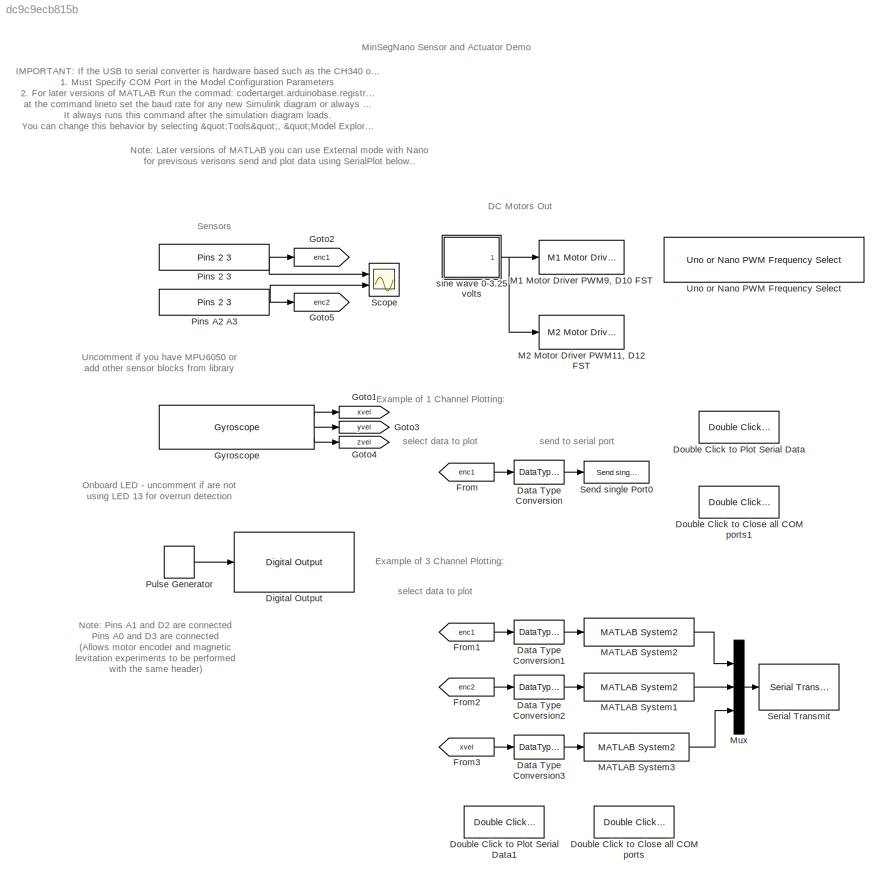
MODEL slx_dc9c9ecb815b
KIND model
CONFIG AbsTol = auto
CONFIG FixedStep = auto
CONFIG MaxStep = auto
CONFIG MinStep = auto
CONFIG PostLoadFcn = try, \ncodertarget.arduinobase.registry.setBaudRate(gcs,115200)\ndisp('baud rate set to 115200 for external mode hardware serial')\nbaudrate='set_to_115200'\ncatch\ndisp('baud rate setting not needed in this version')\nend
CONFIG RelTol = 1e-3
CONFIG SampleTimeConstraint = Unconstrained
CONFIG Solver = ode45
CONFIG SolverMode = Auto
CONFIG SolverName = ode45
CONFIG StartTime = 0.0
CONFIG StopTime = 10.0
BLOCK [DataTypeConversion] Data Type Conversion
  Commented = on
  OutDataTypeStr = single
  RndMeth = Floor
  SaturateOnIntegerOverflow = off
BLOCK [DataTypeConversion] Data Type Conversion1
  Commented = on
  OutDataTypeStr = single
  RndMeth = Floor
  SaturateOnIntegerOverflow = off
BLOCK [DataTypeConversion] Data Type Conversion2
  Commented = on
  OutDataTypeStr = single
  RndMeth = Floor
  SaturateOnIntegerOverflow = off
BLOCK [DataTypeConversion] Data Type Conversion3
  Commented = on
  OutDataTypeStr = single
  RndMeth = Floor
  SaturateOnIntegerOverflow = off
BLOCK [Reference] Digital Output  REF=arduinolib/Digital Output
  Commented = on
  Ports = [1]
  SourceBlock = arduinolib/Digital Output
  SourceType = Arduino Digital Output
  blockPlatform = arduino
  pinNumber = 13
BLOCK [Reference] Double Click to Close all COM ports  REF=RASPlib/Double Click to
Close all COM ports
  Commented = on
  Ports = []
  SourceBlock = RASPlib/Double Click to\nClose all COM ports
BLOCK [Reference] Double Click to Close all COM ports1  REF=RASPlib/Double Click to
Close all COM ports
  Commented = on
  Ports = []
  SourceBlock = RASPlib/Double Click to\nClose all COM ports
BLOCK [Reference] Double Click to Plot Serial Data  REF=RASPlib/Double Click to
Plot Serial Data
  BaudRate = 9600
  COMport = 28
  Commented = on
  DataType = single
  Ncx = 1
  NumSamples = 500
  Ports = []
  SourceBlock = RASPlib/Double Click to\nPlot Serial Data
BLOCK [Reference] Double Click to Plot Serial Data1  REF=RASPlib/Double Click to
Plot Serial Data
  BaudRate = 9600
  COMport = 28
  Commented = on
  DataType = single
  Ncx = 3
  NumSamples = 500
  Ports = []
  SourceBlock = RASPlib/Double Click to\nPlot Serial Data
BLOCK [From] From
  Commented = on
  GotoTag = enc1
BLOCK [From] From1
  Commented = on
  GotoTag = enc1
BLOCK [From] From2
  Commented = on
  GotoTag = enc2
BLOCK [From] From3
  Commented = on
  GotoTag = xvel
BLOCK [Goto] Goto1
  Commented = on
  GotoTag = xvel
BLOCK [Goto] Goto2
  GotoTag = enc1
BLOCK [Goto] Goto3
  Commented = on
  GotoTag = yvel
BLOCK [Goto] Goto4
  Commented = on
  GotoTag = zvel
BLOCK [Goto] Goto5
  GotoTag = enc2
BLOCK [Reference] Gyroscope  REF=RASPlib/Gyroscope
  Commented = on
  DLPFmode = 0
  Ports = [0, 3]
  SourceBlock = RASPlib/Gyroscope
  SourceType = soMPU6050Gyro
BLOCK [Reference] M1 Motor Driver PWM9, D10 FST  REF=MinSegLibrary_MinSegNano/M1 Motor Driver
PWM9, D10 FST
  Ports = [1]
  SourceBlock = MinSegLibrary_MinSegNano/M1 Motor Driver\nPWM9, D10 FST
  SourceType = Motor Driver
  Vsupply = 3.25
BLOCK [Reference] M2 Motor Driver PWM11, D12 FST  REF=MinSegLibrary_MinSegNano/M2 Motor Driver
PWM11, D12 FST
  Ports = [1]
  SourceBlock = MinSegLibrary_MinSegNano/M2 Motor Driver\nPWM11, D12 FST
  SourceType = Motor Driver
  Vsupply = 3.25
BLOCK [Reference] MATLAB System1  REF=RASPlib/Send single Port0/MATLAB System2
  Commented = on
  Ports = [1, 1]
  SimulateUsing = Code generation
  SourceBlock = RASPlib/Send single Port0/MATLAB System2
  SourceType = so_float2bytes
BLOCK [Reference] MATLAB System2  REF=RASPlib/Send single Port0/MATLAB System2
  Commented = on
  Ports = [1, 1]
  SimulateUsing = Code generation
  SourceBlock = RASPlib/Send single Port0/MATLAB System2
  SourceType = so_float2bytes
BLOCK [Reference] MATLAB System3  REF=RASPlib/Send single Port0/MATLAB System2
  Commented = on
  Ports = [1, 1]
  SimulateUsing = Code generation
  SourceBlock = RASPlib/Send single Port0/MATLAB System2
  SourceType = so_float2bytes
BLOCK [Mux] Mux
  Commented = on
  DisplayOption = bar
  Inputs = 3
  Ports = [3, 1]
BLOCK [Reference] Pins 2 3  REF=MinSegLibrary_MinSegNano/Pins 2 3
  Encoder = 0
  PinA = 2
  PinB = 3
  Ports = [0, 1]
  SourceBlock = MinSegLibrary_MinSegNano/Pins 2 3
  SourceType = Encoder_arduino_uno_nano
BLOCK [Reference] Pins A2 A3  REF=MinSegLibrary_MinSegNano/Pins 2 3
  Encoder = 4
  PinA = 16
  PinB = 17
  Ports = [0, 1]
  SourceBlock = MinSegLibrary_MinSegNano/Pins 2 3
  SourceType = Encoder_arduino_uno_nano
BLOCK [DiscretePulseGenerator] Pulse Generator
  Commented = on
  Period = 10
  Ports = [0, 1]
  PulseType = Time based
  PulseWidth = 5
BLOCK [Scope] Scope
  Floating = off
  NumInputPorts = 2
  Ports = [2]
  YMax = 5~5
  YMin = -5~-5
BLOCK [Reference] Send single Port0  REF=RASPlib/Send single Port0
  Commented = on
  Ports = [1]
  SourceBlock = RASPlib/Send single Port0
  SourceType = SubSystem
BLOCK [Reference] Serial Transmit  REF=arduinolib/Serial Transmit
  Commented = on
  Ports = [1]
  SourceBlock = arduinolib/Serial Transmit
  SourceType = Arduino Serial Transmit
  blockPlatform = arduino
  portNumber = 0
BLOCK [Reference] Uno or Nano PWM Frequency Select  REF=RASPlib/Uno or Nano PWM Frequency Select
  Commented = on
  Frequency = 490Hz
  Ports = []
  SourceBlock = RASPlib/Uno or Nano PWM Frequency Select
  Timer = 1 - pins 9, 10
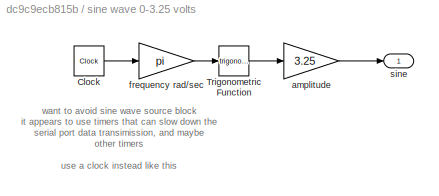
BLOCK [SubSystem] sine wave 0-3.25 volts
  Ports = [0, 1]
  RequestExecContextInheritance = off
BLOCK [Clock] sine wave 0-3.25 volts/Clock
BLOCK [Trigonometry] sine wave 0-3.25 volts/Trigonometric Function
  Ports = [1, 1]
BLOCK [Gain] sine wave 0-3.25 volts/amplitude
  Gain = 3.25
  OutDataTypeStr = Inherit: Inherit via internal rule
  ParamDataTypeStr = Inherit: Inherit via internal rule
  SaturateOnIntegerOverflow = off
BLOCK [Gain] sine wave 0-3.25 volts/frequency rad//sec
  Gain = pi
  OutDataTypeStr = Inherit: Inherit via internal rule
  ParamDataTypeStr = Inherit: Inherit via internal rule
  SaturateOnIntegerOverflow = off
BLOCK [Outport] sine wave 0-3.25 volts/sine
  IconDisplay = Port number
ANNOTATION (root): Example of 1 Channel Plotting:
ANNOTATION (root): Example of 3 Channel Plotting:
ANNOTATION (root): IMPORTANT : If the USB to serial converter is hardware based such as the CH340 or the PL2303 you must: 1. Must Specify COM Port in the Model Configuration Parameters 2. For later versions of MATLAB Run the commad: codertarget.arduinobase.registry.setBaudRate(gcs,115200) at the command lineto set the baud rate for any new Simulink diagram or always use this file to start new projects. It always run...<+146ch>
ANNOTATION (root): DC Motors Out
ANNOTATION (root): MinSegNano Sensor and Actuator Demo
ANNOTATION (root): Note: Later versions of MATLAB you can use External mode with Nano for previsous verisons send and plot data using SerialPlot below..
ANNOTATION (root): Note: Pins A1 and D2 are connected Pins A0 and D3 are connected (Allows motor encoder and magnetic levitation experiments to be performed with the same header)
ANNOTATION (root): Onboard LED - uncomment if are not using LED 13 for overrun detection
ANNOTATION (root): Sensors
ANNOTATION (root): Uncomment if you have MPU6050 or add other sensor blocks from library
ANNOTATION (root): select data to plot
ANNOTATION (root): send to serial port
ANNOTATION sine wave 0-3.25 volts: want to avoid sine wave source block it appears to use timers that can slow down the serial port data transimission, and maybe other timers use a clock instead like this
LINE Data Type Conversion1:1 -> MATLAB System2:1
LINE Data Type Conversion2:1 -> MATLAB System1:1
LINE Data Type Conversion3:1 -> MATLAB System3:1
LINE Data Type Conversion:1 -> Send single Port0:1
LINE From1:1 -> Data Type Conversion1:1
LINE From2:1 -> Data Type Conversion2:1
LINE From3:1 -> Data Type Conversion3:1
LINE From:1 -> Data Type Conversion:1
LINE Gyroscope:1 -> Goto1:1
LINE Gyroscope:2 -> Goto3:1
LINE Gyroscope:3 -> Goto4:1
LINE MATLAB System1:1 -> Mux:2
LINE MATLAB System2:1 -> Mux:1
LINE MATLAB System3:1 -> Mux:3
LINE Mux:1 -> Serial Transmit:1
NET Pins 2 3:1 -> Goto2:1, Scope:1
NET Pins A2 A3:1 -> Goto5:1, Scope:2
LINE Pulse Generator:1 -> Digital Output:1
LINE sine wave 0-3.25 volts/Clock:1 -> sine wave 0-3.25 volts/frequency rad//sec:1
LINE sine wave 0-3.25 volts/Trigonometric Function:1 -> sine wave 0-3.25 volts/amplitude:1
LINE sine wave 0-3.25 volts/amplitude:1 -> sine wave 0-3.25 volts/sine:1
LINE sine wave 0-3.25 volts/frequency rad//sec:1 -> sine wave 0-3.25 volts/Trigonometric Function:1
NET sine wave 0-3.25 volts:1 -> M1 Motor Driver PWM9, D10 FST:1, M2 Motor Driver PWM11, D12 FST:1
note: NET lines group one-source signal fan-out (src -> all destinations, sorted); 1:1 wires keep LINE
